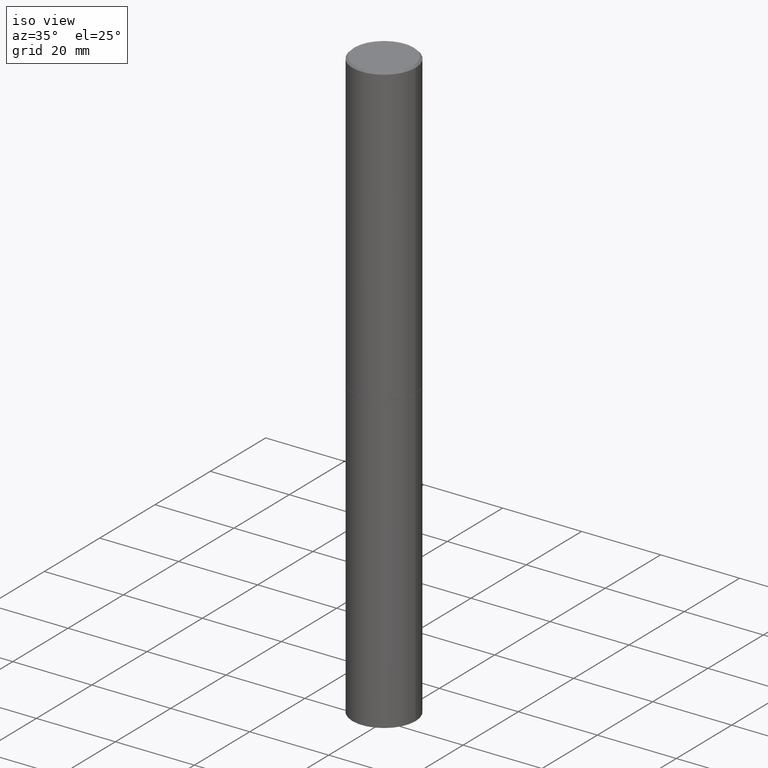
[diagram: clean part render]
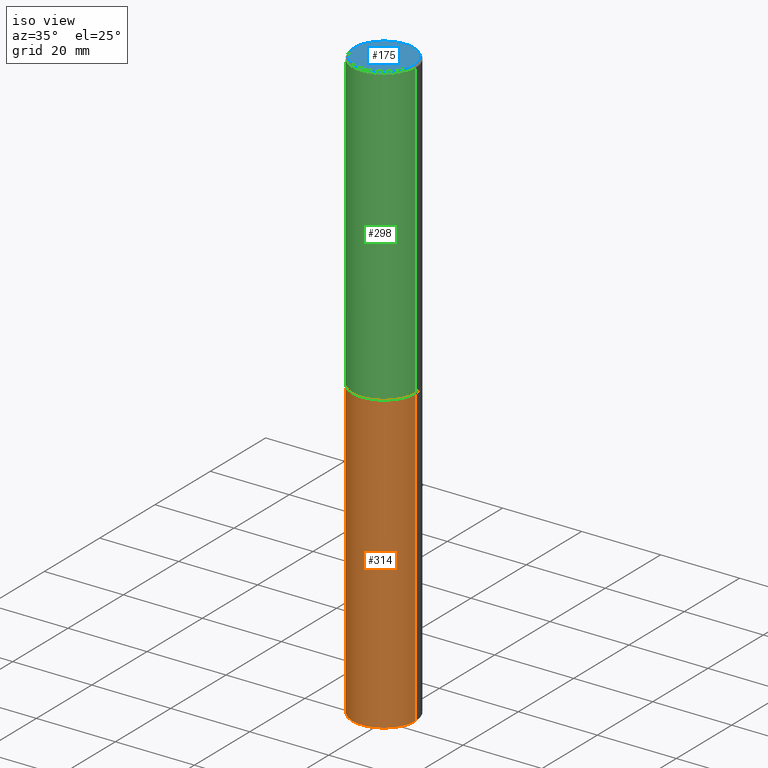
[diagram: same view with three faces highlighted in distinct colors, each labeled with its STEP entity id]
A machine part, iso view with three faces highlighted in distinct colors.
Their STEP definitions:

[orange] entity #314 — the highlighted cylindrical surface (partial cylindrical patch) has radius 7.9997 mm, axis along (-0, 0, 1).
#7 = EDGE_CURVE ( 'NONE', #284, #20, #109, .T. ) ;
#8 = CIRCLE ( 'NONE', #136, 0.3149500000000000077 ) ;
#9 = CARTESIAN_POINT ( 'NONE',  ( -0.3149500000000000077, 2.237854346276435590E-15, -1.549218606675782676E-29 ) ) ;
#10 = LINE ( 'NONE', #9, #61 ) ;
#20 = VERTEX_POINT ( 'NONE', #353 ) ;
#29 = ORIENTED_EDGE ( 'NONE', *, *, #7, .T. ) ;
#39 = CARTESIAN_POINT ( 'NONE',  ( -0.3149500000000000077, -1.322626565159373987E-14, -2.952700000000000102 ) ) ;
#42 = DIRECTION ( 'NONE',  ( 1.000000000000000000, -6.982962677686263555E-15, 0.000000000000000000 ) ) ;
#59 = LINE ( 'NONE', #198, #90 ) ;
#61 = VECTOR ( 'NONE', #292, 39.37007874015748143 ) ;
#63 = DIRECTION ( 'NONE',  ( 1.000000000000000000, -6.982962677686263555E-15, 0.000000000000000000 ) ) ;
#67 = AXIS2_PLACEMENT_3D ( 'NONE', #120, #263, #63 ) ;
#74 = EDGE_CURVE ( 'NONE', #284, #85, #10, .T. ) ;
#77 = ORIENTED_EDGE ( 'NONE', *, *, #144, .F. ) ;
#85 = VERTEX_POINT ( 'NONE', #39 ) ;
#90 = VECTOR ( 'NONE', #318, 39.37007874015748143 ) ;
#107 = FACE_OUTER_BOUND ( 'NONE', #242, .T. ) ;
#109 = CIRCLE ( 'NONE', #67, 0.3149500000000000077 ) ;
#118 = CARTESIAN_POINT ( 'NONE',  ( 7.220735744022852519E-29, -1.030929694920215502E-14, -2.952700000000000102 ) ) ;
#120 = CARTESIAN_POINT ( 'NONE',  ( 1.444171603492632270E-28, -2.061894304653819197E-14, -5.905499999999999972 ) ) ;
#123 = AXIS2_PLACEMENT_3D ( 'NONE', #128, #241, #218 ) ;
#125 = CYLINDRICAL_SURFACE ( 'NONE', #123, 0.3149500000000000077 ) ;
#128 = CARTESIAN_POINT ( 'NONE',  ( 0.000000000000000000, 0.000000000000000000, 0.000000000000000000 ) ) ;
#136 = AXIS2_PLACEMENT_3D ( 'NONE', #118, #303, #42 ) ;
#144 = EDGE_CURVE ( 'NONE', #85, #196, #8, .T. ) ;
#182 = CARTESIAN_POINT ( 'NONE',  ( 0.3149500000000000077, -1.250858104453944331E-14, -2.952700000000000102 ) ) ;
#191 = CARTESIAN_POINT ( 'NONE',  ( -0.3149500000000000077, -1.322626565159373987E-14, -5.905499999999999972 ) ) ;
#196 = VERTEX_POINT ( 'NONE', #182 ) ;
#198 = CARTESIAN_POINT ( 'NONE',  ( 0.3149500000000000077, -2.199284095337289871E-15, 1.535751875536930130E-29 ) ) ;
#218 = DIRECTION ( 'NONE',  ( 1.000000000000000000, -6.982962677686266711E-15, 4.876176775795936353E-29 ) ) ;
#241 = DIRECTION ( 'NONE',  ( -2.445468806185136597E-29, 3.491481338843145583E-15, 1.000000000000000000 ) ) ;
#242 = EDGE_LOOP ( 'NONE', ( #315, #29, #252, #77 ) ) ;
#252 = ORIENTED_EDGE ( 'NONE', *, *, #334, .T. ) ;
#263 = DIRECTION ( 'NONE',  ( -2.445468806185136597E-29, 3.491481338843145583E-15, 1.000000000000000000 ) ) ;
#284 = VERTEX_POINT ( 'NONE', #191 ) ;
#292 = DIRECTION ( 'NONE',  ( -2.445468806185136877E-29, 3.491481338843145188E-15, 1.000000000000000000 ) ) ;
#303 = DIRECTION ( 'NONE',  ( -2.445468806185136597E-29, 3.491481338843145583E-15, 1.000000000000000000 ) ) ;
#314 = ADVANCED_FACE ( 'NONE', ( #107 ), #125, .T. ) ;
#315 = ORIENTED_EDGE ( 'NONE', *, *, #74, .F. ) ;
#318 = DIRECTION ( 'NONE',  ( -2.445468806185136877E-29, 3.491481338843145188E-15, 1.000000000000000000 ) ) ;
#334 = EDGE_CURVE ( 'NONE', #20, #196, #59, .T. ) ;
#353 = CARTESIAN_POINT ( 'NONE',  ( 0.3149500000000000077, -2.281822714187548341E-14, -5.905499999999999972 ) ) ;

[blue] entity #175 — the highlighted planar face has unit normal (0, -0, -1).
#16 = CARTESIAN_POINT ( 'NONE',  ( -0.2949499999999996014, 2.094539655171992951E-15, 4.268512490085885145E-18 ) ) ;
#36 = AXIS2_PLACEMENT_3D ( 'NONE', #81, #140, #139 ) ;
#71 = FACE_OUTER_BOUND ( 'NONE', #216, .T. ) ;
#73 = CARTESIAN_POINT ( 'NONE',  ( 2.059624841783561302E-15, 0.2949499999999996014, -1.027678164646734185E-15 ) ) ;
#81 = CARTESIAN_POINT ( 'NONE',  ( -1.043851414335219820E-46, 1.490343170380447200E-32, 4.268512490100411279E-18 ) ) ;
#102 = PLANE ( 'NONE',  #256 ) ;
#105 = ORIENTED_EDGE ( 'NONE', *, *, #115, .T. ) ;
#115 = EDGE_CURVE ( 'NONE', #304, #338, #134, .T. ) ;
#133 = ORIENTED_EDGE ( 'NONE', *, *, #323, .T. ) ;
#134 = CIRCLE ( 'NONE', #264, 0.2949499999999996014 ) ;
#139 = DIRECTION ( 'NONE',  ( 1.000000000000000000, -6.982962677686266711E-15, 4.876053491004741073E-29 ) ) ;
#140 = DIRECTION ( 'NONE',  ( -2.445468806185136597E-29, 3.491481338843145583E-15, 1.000000000000000000 ) ) ;
#158 = DIRECTION ( 'NONE',  ( -1.000000000000000000, 6.982962677686265922E-15, -4.876176775795935793E-29 ) ) ;
#175 = ADVANCED_FACE ( 'NONE', ( #71 ), #102, .F. ) ;
#205 = CARTESIAN_POINT ( 'NONE',  ( -1.043851414335219820E-46, 1.490343170380447200E-32, 4.268512490100411279E-18 ) ) ;
#216 = EDGE_LOOP ( 'NONE', ( #105, #133 ) ) ;
#220 = CIRCLE ( 'NONE', #36, 0.2949499999999996014 ) ;
#256 = AXIS2_PLACEMENT_3D ( 'NONE', #73, #330, #158 ) ;
#259 = DIRECTION ( 'NONE',  ( -2.445468806185136597E-29, 3.491481338843145583E-15, 1.000000000000000000 ) ) ;
#264 = AXIS2_PLACEMENT_3D ( 'NONE', #205, #259, #327 ) ;
#304 = VERTEX_POINT ( 'NONE', #16 ) ;
#316 = CARTESIAN_POINT ( 'NONE',  ( 0.2949499999999996014, -2.127023677808857708E-15, 4.268512490115050658E-18 ) ) ;
#323 = EDGE_CURVE ( 'NONE', #338, #304, #220, .T. ) ;
#327 = DIRECTION ( 'NONE',  ( 1.000000000000000000, -6.982962677686266711E-15, 4.876053491004741073E-29 ) ) ;
#330 = DIRECTION ( 'NONE',  ( 2.438088387897960049E-29, -3.491481338843145188E-15, -1.000000000000000000 ) ) ;
#338 = VERTEX_POINT ( 'NONE', #316 ) ;

[green] entity #298 — the highlighted cylindrical surface (partial cylindrical patch) has radius 7.9997 mm, axis along (-0, 0, 1).
#3 = VECTOR ( 'NONE', #33, 39.37007874015748143 ) ;
#13 = AXIS2_PLACEMENT_3D ( 'NONE', #148, #293, #288 ) ;
#17 = EDGE_CURVE ( 'NONE', #129, #159, #68, .T. ) ;
#19 = CARTESIAN_POINT ( 'NONE',  ( 4.890937612370290675E-31, -6.982962677686316261E-17, -0.02000000000000007327 ) ) ;
#26 = CIRCLE ( 'NONE', #230, 0.3149499999999996747 ) ;
#33 = DIRECTION ( 'NONE',  ( -2.445468806185136877E-29, 3.491481338843145188E-15, 1.000000000000000000 ) ) ;
#50 = EDGE_CURVE ( 'NONE', #129, #108, #295, .T. ) ;
#62 = CARTESIAN_POINT ( 'NONE',  ( 0.3149500000000000077, -1.250508956320060346E-14, -2.951700000000000212 ) ) ;
#68 = LINE ( 'NONE', #94, #282 ) ;
#80 = VERTEX_POINT ( 'NONE', #121 ) ;
#83 = ORIENTED_EDGE ( 'NONE', *, *, #290, .F. ) ;
#94 = CARTESIAN_POINT ( 'NONE',  ( -0.3149499999999998967, 2.237854346276434801E-15, -1.549218606675782116E-29 ) ) ;
#108 = VERTEX_POINT ( 'NONE', #62 ) ;
#119 = EDGE_CURVE ( 'NONE', #108, #80, #351, .T. ) ;
#121 = CARTESIAN_POINT ( 'NONE',  ( 0.3149499999999996747, -2.230543471175005083E-15, -0.02000000000000007327 ) ) ;
#129 = VERTEX_POINT ( 'NONE', #207 ) ;
#148 = CARTESIAN_POINT ( 'NONE',  ( 7.218290275216666916E-29, -1.030580546786331359E-14, -2.951700000000000212 ) ) ;
#155 = DIRECTION ( 'NONE',  ( -2.445468806185136597E-29, 3.491481338843145583E-15, 1.000000000000000000 ) ) ;
#159 = VERTEX_POINT ( 'NONE', #301 ) ;
#165 = ORIENTED_EDGE ( 'NONE', *, *, #50, .T. ) ;
#188 = CARTESIAN_POINT ( 'NONE',  ( 0.000000000000000000, 0.000000000000000000, 0.000000000000000000 ) ) ;
#202 = DIRECTION ( 'NONE',  ( -2.445468806185136877E-29, 3.491481338843145188E-15, 1.000000000000000000 ) ) ;
#203 = CARTESIAN_POINT ( 'NONE',  ( 0.3149499999999998967, -2.199284095337288688E-15, 1.535751875536929289E-29 ) ) ;
#207 = CARTESIAN_POINT ( 'NONE',  ( -0.3149500000000000077, -2.949963201043651274E-15, -2.951700000000000212 ) ) ;
#223 = ORIENTED_EDGE ( 'NONE', *, *, #119, .T. ) ;
#225 = ORIENTED_EDGE ( 'NONE', *, *, #17, .F. ) ;
#230 = AXIS2_PLACEMENT_3D ( 'NONE', #19, #266, #270 ) ;
#244 = CYLINDRICAL_SURFACE ( 'NONE', #325, 0.3149499999999998967 ) ;
#266 = DIRECTION ( 'NONE',  ( -2.445468806185136597E-29, 3.491481338843145583E-15, 1.000000000000000000 ) ) ;
#270 = DIRECTION ( 'NONE',  ( 1.000000000000000000, -6.982962677686266711E-15, 0.000000000000000000 ) ) ;
#282 = VECTOR ( 'NONE', #202, 39.37007874015748143 ) ;
#288 = DIRECTION ( 'NONE',  ( 1.000000000000000000, -6.982962677686263555E-15, 0.000000000000000000 ) ) ;
#290 = EDGE_CURVE ( 'NONE', #159, #80, #26, .T. ) ;
#293 = DIRECTION ( 'NONE',  ( -2.445468806185136597E-29, 3.491481338843145583E-15, 1.000000000000000000 ) ) ;
#295 = CIRCLE ( 'NONE', #13, 0.3149500000000000077 ) ;
#298 = ADVANCED_FACE ( 'NONE', ( #333 ), #244, .T. ) ;
#301 = CARTESIAN_POINT ( 'NONE',  ( -0.3149499999999996747, 2.129454468560424206E-15, -0.02000000000000007327 ) ) ;
#310 = EDGE_LOOP ( 'NONE', ( #225, #165, #223, #83 ) ) ;
#325 = AXIS2_PLACEMENT_3D ( 'NONE', #188, #155, #337 ) ;
#333 = FACE_OUTER_BOUND ( 'NONE', #310, .T. ) ;
#337 = DIRECTION ( 'NONE',  ( 1.000000000000000000, -6.982962677686265922E-15, 4.876176775795935232E-29 ) ) ;
#351 = LINE ( 'NONE', #203, #3 ) ;